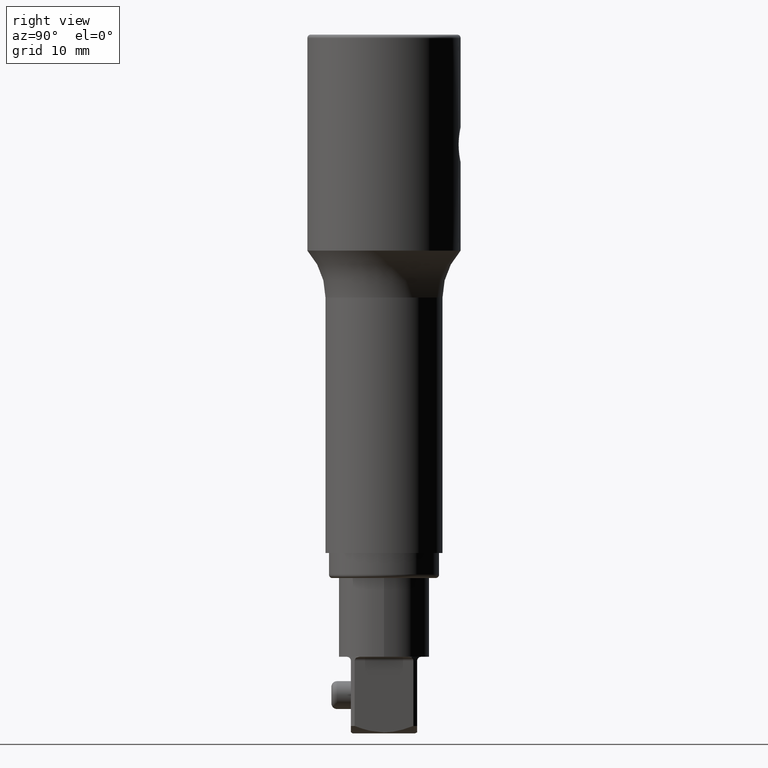
[diagram: clean part render]
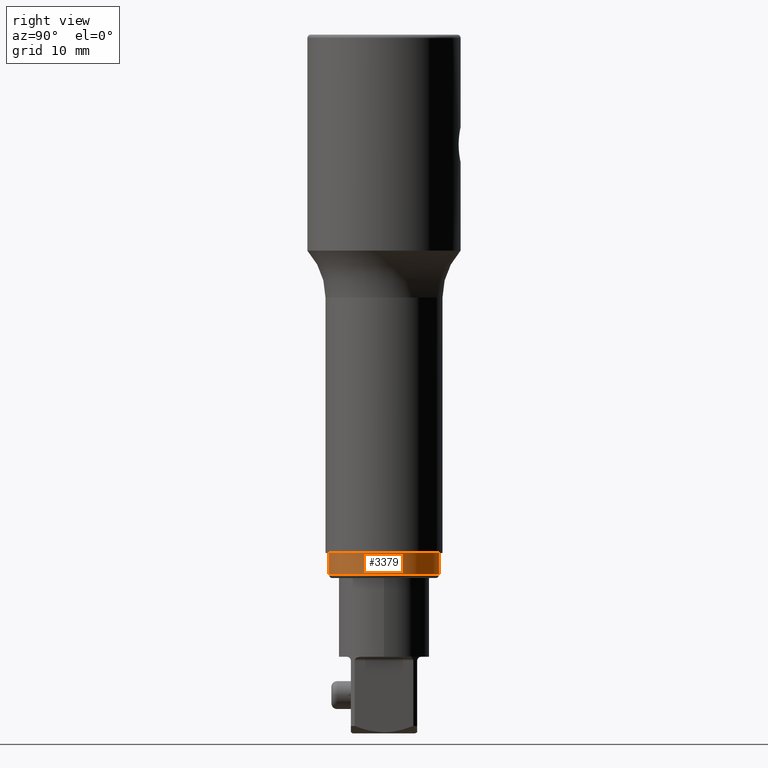
[diagram: same view with one face highlighted and labeled with its STEP entity id]
A machine part, right view. The second image highlights one B-rep face of the part: STEP entity #3379.
In plain terms, the highlighted cylindrical surface (partial cylindrical patch) has radius 7.9 mm, axis along (0, 0, -1).
Its self-contained STEP definition (entity closure, byte-faithful):
#2779=CARTESIAN_POINT('',(0.E0,0.E0,-7.44E1));
#2780=DIRECTION('',(0.E0,0.E0,-1.E0));
#2781=DIRECTION('',(0.E0,1.E0,0.E0));
#2782=AXIS2_PLACEMENT_3D('',#2779,#2780,#2781);
#2795=DIRECTION('',(2.912933755503E-14,0.E0,1.E0));
#2796=VECTOR('',#2795,3.1E0);
#2797=CARTESIAN_POINT('',(-8.965596577304E-14,7.9E0,-7.75E1));
#2798=LINE('',#2797,#2796);
#2802=DIRECTION('',(-2.950346298269E-14,0.E0,1.E0));
#2803=VECTOR('',#2802,3.1E0);
#2804=CARTESIAN_POINT('',(9.081575459880E-14,-7.9E0,-7.75E1));
#2805=LINE('',#2804,#2803);
#2825=CARTESIAN_POINT('',(0.E0,0.E0,-7.75E1));
#2826=DIRECTION('',(0.E0,0.E0,1.E0));
#2827=DIRECTION('',(0.E0,-1.E0,0.E0));
#2828=AXIS2_PLACEMENT_3D('',#2825,#2826,#2827);
#3124=CARTESIAN_POINT('',(0.E0,7.9E0,-7.44E1));
#3125=CARTESIAN_POINT('',(0.E0,-7.9E0,-7.44E1));
#3126=VERTEX_POINT('',#3124);
#3127=VERTEX_POINT('',#3125);
#3128=CARTESIAN_POINT('',(0.E0,-7.9E0,-7.75E1));
#3129=CARTESIAN_POINT('',(0.E0,7.9E0,-7.75E1));
#3130=VERTEX_POINT('',#3128);
#3131=VERTEX_POINT('',#3129);
#3368=CARTESIAN_POINT('',(0.E0,0.E0,3.9E0));
#3369=DIRECTION('',(0.E0,0.E0,-1.E0));
#3370=DIRECTION('',(0.E0,-1.E0,0.E0));
#3371=AXIS2_PLACEMENT_3D('',#3368,#3369,#3370);
#3372=CYLINDRICAL_SURFACE('',#3371,7.9E0);
#3373=ORIENTED_EDGE('',*,*,#3359,.F.);
#3374=ORIENTED_EDGE('',*,*,#3334,.T.);
#3375=ORIENTED_EDGE('',*,*,#3319,.F.);
#3376=ORIENTED_EDGE('',*,*,#3331,.F.);
#3377=EDGE_LOOP('',(#3373,#3374,#3375,#3376));
#3378=FACE_OUTER_BOUND('',#3377,.F.);
#3379=ADVANCED_FACE('',(#3378),#3372,.T.);
#2783=CIRCLE('',#2782,7.9E0);
#2829=CIRCLE('',#2828,7.9E0);
#3319=EDGE_CURVE('',#3126,#3127,#2783,.T.);
#3331=EDGE_CURVE('',#3131,#3126,#2798,.T.);
#3334=EDGE_CURVE('',#3130,#3127,#2805,.T.);
#3359=EDGE_CURVE('',#3130,#3131,#2829,.T.);